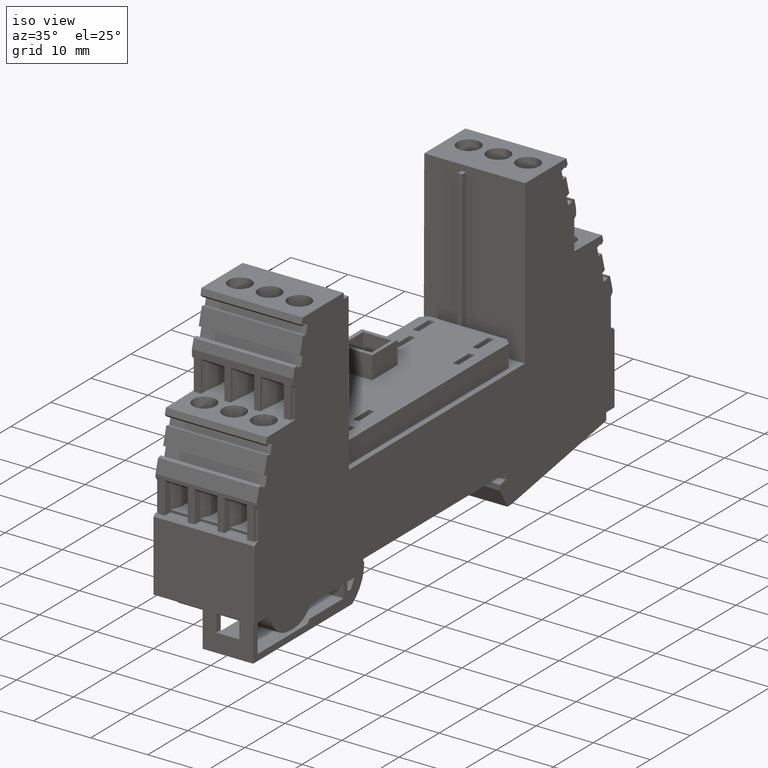
[diagram: clean part render]
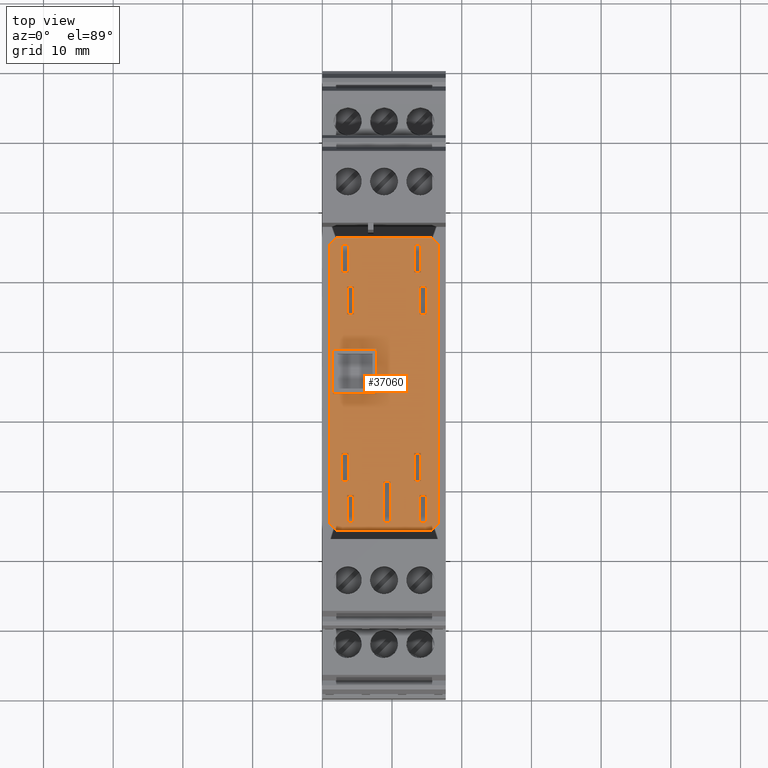
[diagram: tour spotlight — one face highlighted and labeled with its STEP entity id]
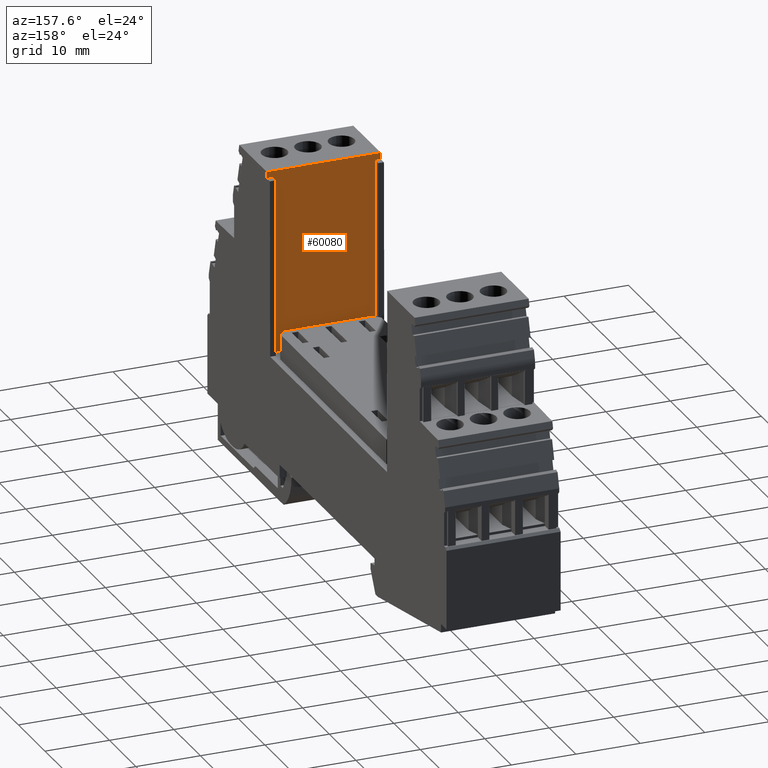
[diagram: tour spotlight — one face highlighted and labeled with its STEP entity id]
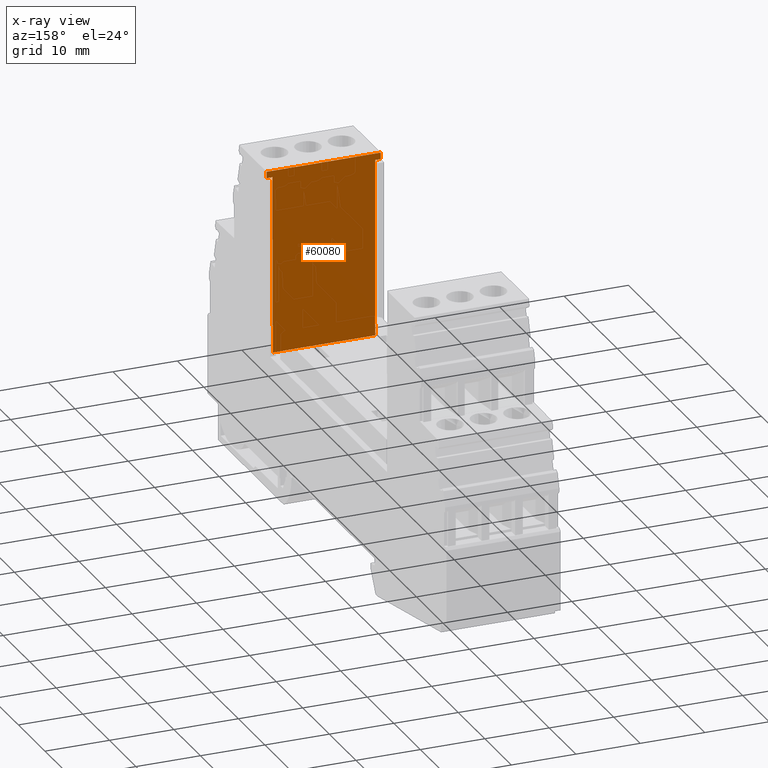
[diagram: x-ray of the same camera — body ghosted, this tour face saturated]
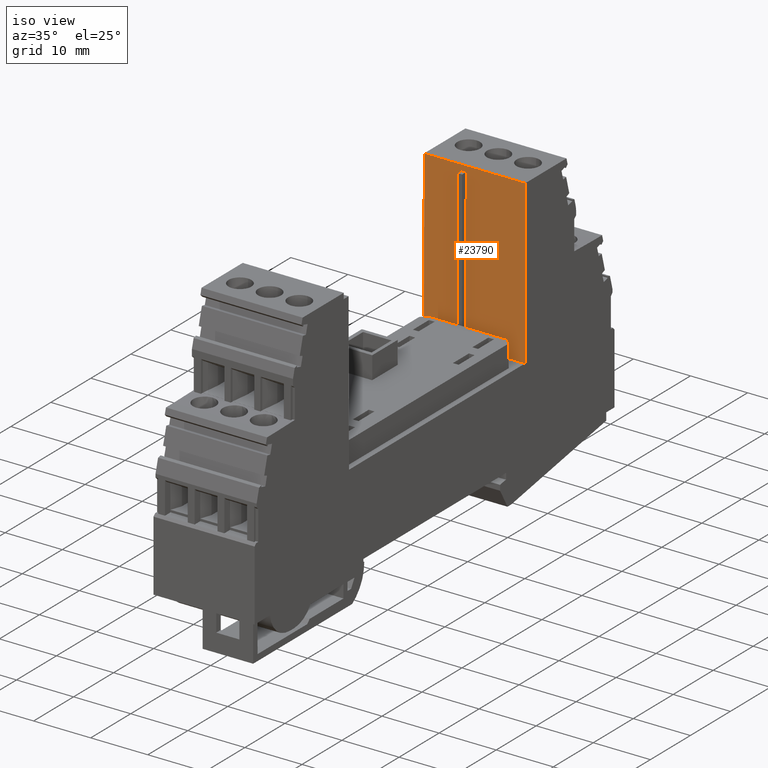
[diagram: tour spotlight — one face highlighted and labeled with its STEP entity id]
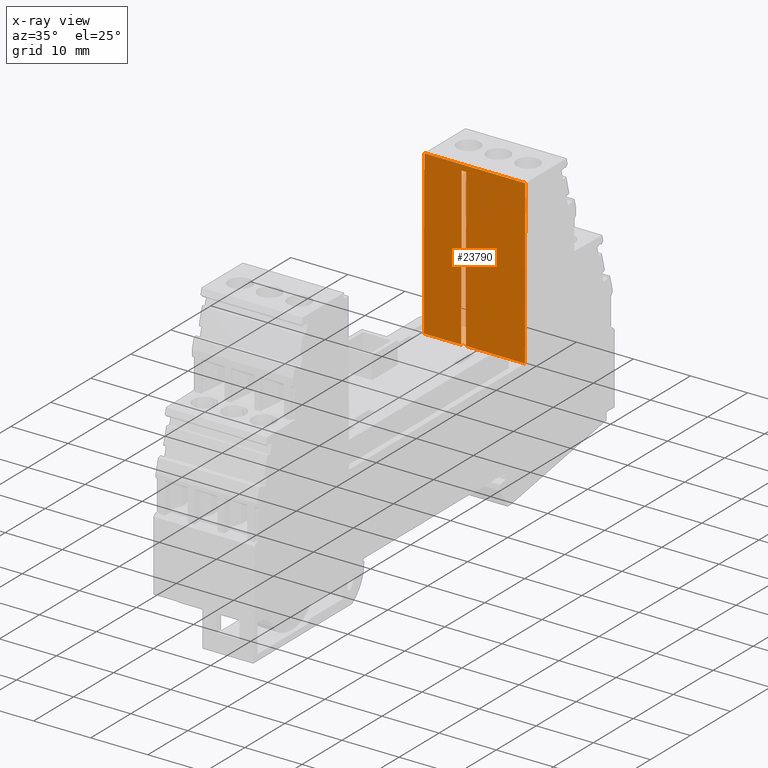
[diagram: x-ray of the same camera — body ghosted, this tour face saturated]
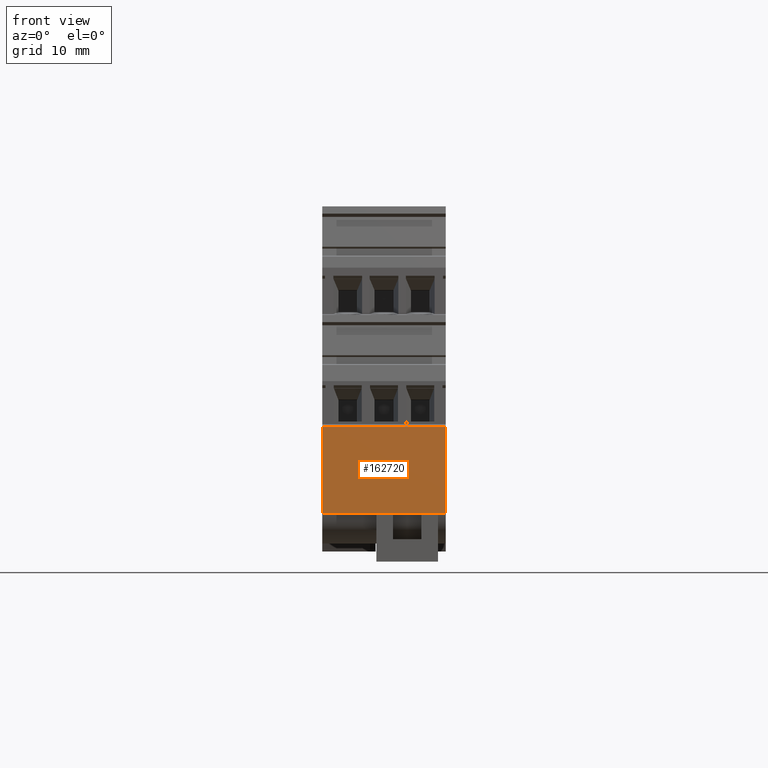
[diagram: tour spotlight — one face highlighted and labeled with its STEP entity id]
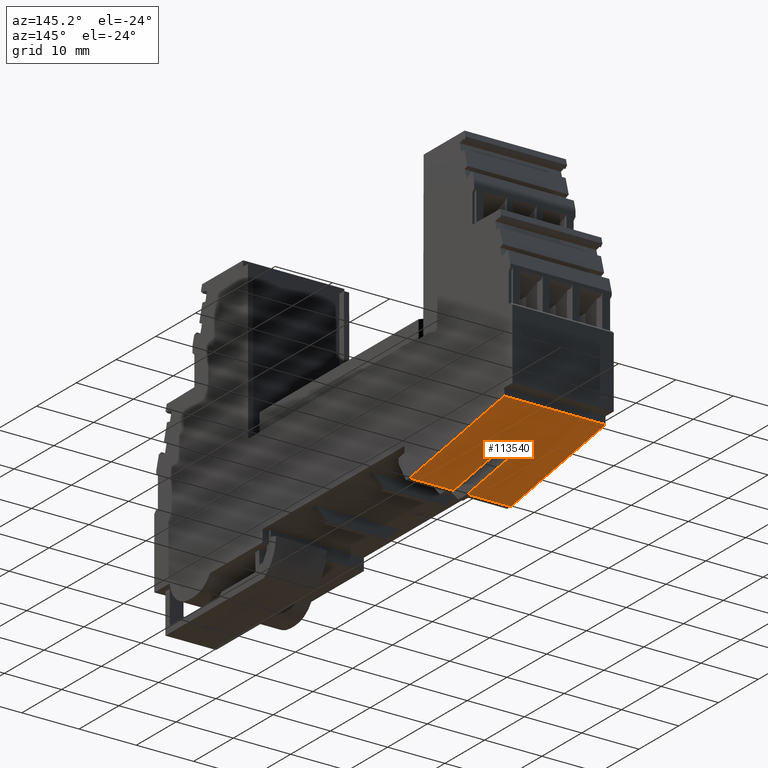
[diagram: tour spotlight — one face highlighted and labeled with its STEP entity id]
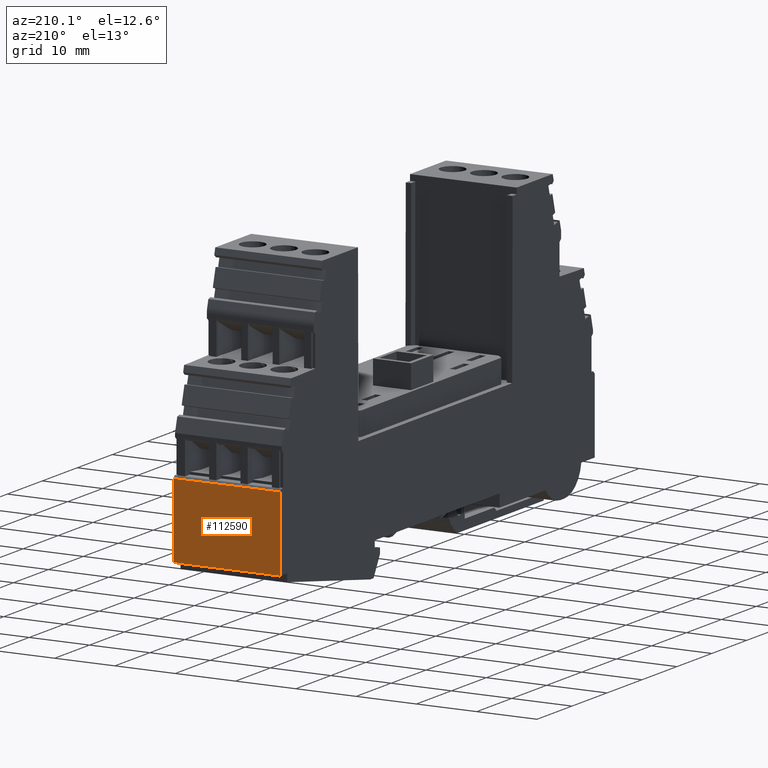
[diagram: tour spotlight — one face highlighted and labeled with its STEP entity id]
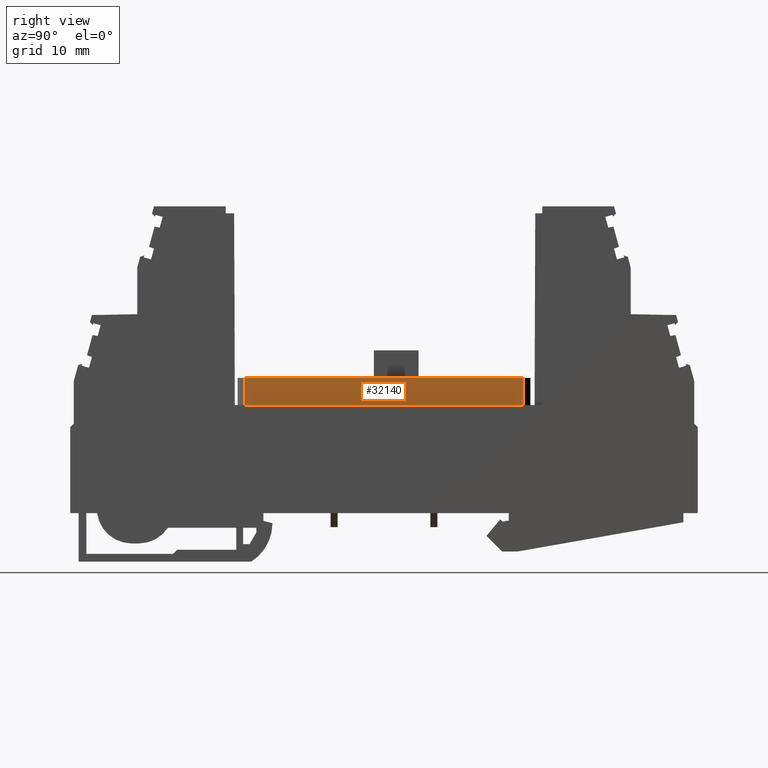
[diagram: tour spotlight — one face highlighted and labeled with its STEP entity id]
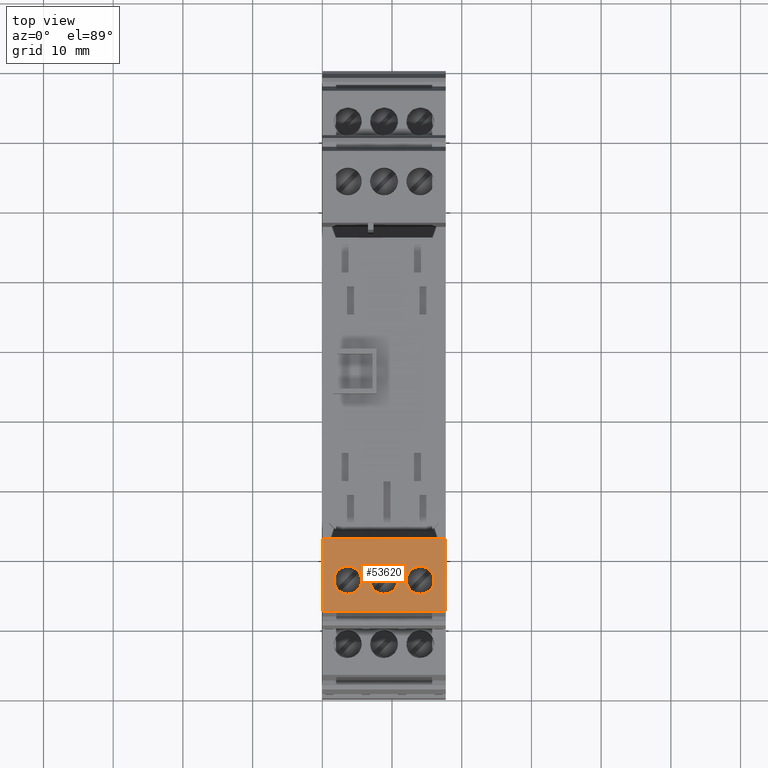
[diagram: tour spotlight — one face highlighted and labeled with its STEP entity id]
A machine part: a face-by-face anatomy tour. The part has 505 B-rep faces; the first image is the clean iso view, then the 8 largest visible faces are spotlighted one at a time (largest first), each with its STEP entity span.

Face 1 — top view, entity #37060. In plain terms, the highlighted planar face has unit normal (0, 0, 1).
Definition (entity closure, byte-faithful):
#31930=CARTESIAN_POINT('',(49.3413513671893,36.456274052444,-38.3));
#31940=VERTEX_POINT('',#31930);
#31970=CARTESIAN_POINT('',(8.90000005327397,36.456274052444,-38.3));
#31980=DIRECTION('',(-1.,0.,2.11259981369696E-23));
#31990=VECTOR('',#31980,1.);
#32000=LINE('',#31970,#31990);
#32010=CARTESIAN_POINT('',(89.3413513671894,36.456274052444,-38.3));
#32020=VERTEX_POINT('',#32010);
#32030=EDGE_CURVE('',#32020,#31940,#32000,.T.);
#32310=CARTESIAN_POINT('',(48.3413513671893,36.456274052444,-39.3));
#32320=VERTEX_POINT('',#32310);
#32350=CARTESIAN_POINT('',(83.8913513672815,36.456274052444,
-3.74999999990759));
#32360=DIRECTION('',(-0.707106781186545,0.,-0.70710678118655));
#32370=VECTOR('',#32360,1.);
#32380=LINE('',#32350,#32370);
#32390=EDGE_CURVE('',#31940,#32320,#32380,.T.);
#32620=CARTESIAN_POINT('',(49.3413513671894,36.456274052444,-54.));
#32630=VERTEX_POINT('',#32620);
#32660=CARTESIAN_POINT('',(-0.90864863290264,36.456274052444,
-3.74999999990759));
#32670=DIRECTION('',(0.707106781186545,0.,-0.70710678118655));
#32680=VECTOR('',#32670,1.);
#32690=LINE('',#32660,#32680);
#32700=CARTESIAN_POINT('',(48.3413513671893,36.456274052444,-53.));
#32710=VERTEX_POINT('',#32700);
#32720=EDGE_CURVE('',#32710,#32630,#32690,.T.);
#33000=CARTESIAN_POINT('',(90.3413513671893,36.456274052444,-53.));
#33010=VERTEX_POINT('',#33000);
#33040=CARTESIAN_POINT('',(139.591351367281,36.456274052444,
-3.74999999990759));
#33050=DIRECTION('',(0.707106781186545,0.,0.70710678118655));
#33060=VECTOR('',#33050,1.);
#33070=LINE('',#33040,#33060);
#33080=CARTESIAN_POINT('',(89.3413513671893,36.456274052444,-54.));
#33090=VERTEX_POINT('',#33080);
#33100=EDGE_CURVE('',#33090,#33010,#33070,.T.);
#33290=CARTESIAN_POINT('',(81.4789292064964,36.456274052444,
-46.1903015001682));
#33300=DIRECTION('',(0.,1.,-0.));
#33310=DIRECTION('',(-1.,0.,0.));
#33320=AXIS2_PLACEMENT_3D('',#33290,#33300,#33310);
#33330=PLANE('',#33320);
#33340=CARTESIAN_POINT('',(53.3913513671894,36.456274052444,
-3.74999999990759));
#33350=DIRECTION('',(1.22464679914735E-16,0.,1.));
#33360=VECTOR('',#33350,1.);
#33370=LINE('',#33340,#33360);
#33380=CARTESIAN_POINT('',(53.3913513671894,36.456274052444,-41.05));
#33390=VERTEX_POINT('',#33380);
#33400=CARTESIAN_POINT('',(53.3913513671894,36.456274052444,-40.05));
#33410=VERTEX_POINT('',#33400);
#33420=EDGE_CURVE('',#33390,#33410,#33370,.T.);
#33430=ORIENTED_EDGE('',*,*,#33420,.T.);
#33440=CARTESIAN_POINT('',(8.90000005327397,36.456274052444,-41.05));
#33450=DIRECTION('',(1.,0.,-1.22464679914735E-16));
#33460=VECTOR('',#33450,1.);
#33470=LINE('',#33440,#33460);
#33480=CARTESIAN_POINT('',(49.3913513671894,36.456274052444,-41.05));
#33490=VERTEX_POINT('',#33480);
#33500=EDGE_CURVE('',#33490,#33390,#33470,.T.);
#33510=ORIENTED_EDGE('',*,*,#33500,.T.);
#33520=CARTESIAN_POINT('',(49.3913513671894,36.456274052444,
-3.74999999990759));
#33530=DIRECTION('',(-1.22464679914735E-16,0.,-1.));
#33540=VECTOR('',#33530,1.);
#33550=LINE('',#33520,#33540);
#33560=CARTESIAN_POINT('',(49.3913513671894,36.456274052444,-40.05));
#33570=VERTEX_POINT('',#33560);
#33580=EDGE_CURVE('',#33570,#33490,#33550,.T.);
#33590=ORIENTED_EDGE('',*,*,#33580,.T.);
#33600=CARTESIAN_POINT('',(8.90000005327397,36.456274052444,-40.05));
#33610=DIRECTION('',(-1.,0.,1.22464679914735E-16));
#33620=VECTOR('',#33610,1.);
#33630=LINE('',#33600,#33620);
#33640=EDGE_CURVE('',#33410,#33570,#33630,.T.);
#33650=ORIENTED_EDGE('',*,*,#33640,.T.);
#33660=EDGE_LOOP('',(#33650,#33590,#33510,#33430));
#33670=FACE_BOUND('',#33660,.T.);
#33680=CARTESIAN_POINT('',(8.90000005327397,36.456274052444,-47.2));
#33690=DIRECTION('',(1.,0.,-1.22464679914735E-16));
#33700=VECTOR('',#33690,1.);
#33710=LINE('',#33680,#33700);
#33720=CARTESIAN_POINT('',(67.8913513671893,36.456274052444,-47.2));
#33730=VERTEX_POINT('',#33720);
#33740=CARTESIAN_POINT('',(74.2913513671893,36.456274052444,-47.2));
#33750=VERTEX_POINT('',#33740);
#33760=EDGE_CURVE('',#33730,#33750,#33710,.T.);
#33770=ORIENTED_EDGE('',*,*,#33760,.F.);
#33780=CARTESIAN_POINT('',(74.2913513671893,36.456274052444,
-3.74999999990759));
#33790=DIRECTION('',(-1.22464679914735E-16,0.,-1.));
#33800=VECTOR('',#33790,1.);
#33810=LINE('',#33780,#33800);
#33820=CARTESIAN_POINT('',(74.2913513671893,36.456274052444,-53.5));
#33830=VERTEX_POINT('',#33820);
#33840=EDGE_CURVE('',#33750,#33830,#33810,.T.);
#33850=ORIENTED_EDGE('',*,*,#33840,.F.);
#33860=CARTESIAN_POINT('',(8.90000005327397,36.456274052444,-53.5));
#33870=DIRECTION('',(-1.,0.,1.22464679914735E-16));
#33880=VECTOR('',#33870,1.);
#33890=LINE('',#33860,#33880);
#33900=CARTESIAN_POINT('',(67.8913513671893,36.456274052444,-53.5));
#33910=VERTEX_POINT('',#33900);
#33920=EDGE_CURVE('',#33830,#33910,#33890,.T.);
#33930=ORIENTED_EDGE('',*,*,#33920,.F.);
#33940=CARTESIAN_POINT('',(67.8913513671893,36.456274052444,
-3.7499999999076));
#33950=DIRECTION('',(1.22464679914735E-16,0.,1.));
#33960=VECTOR('',#33950,1.);
#33970=LINE('',#33940,#33960);
#33980=EDGE_CURVE('',#33910,#33730,#33970,.T.);
#33990=ORIENTED_EDGE('',*,*,#33980,.F.);
#34000=EDGE_LOOP('',(#33990,#33930,#33850,#33770));
#34010=FACE_BOUND('',#34000,.T.);
#34020=CARTESIAN_POINT('',(8.90000005327397,36.456274052444,-41.85));
#34030=DIRECTION('',(1.,0.,-8.99708997865547E-21));
#34040=VECTOR('',#34030,1.);
#34050=LINE('',#34020,#34040);
#34060=CARTESIAN_POINT('',(85.2913513671893,36.456274052444,-41.85));
#34070=VERTEX_POINT('',#34060);
#34080=CARTESIAN_POINT('',(89.2913513671893,36.456274052444,-41.85));
#34090=VERTEX_POINT('',#34080);
#34100=EDGE_CURVE('',#34070,#34090,#34050,.T.);
#34110=ORIENTED_EDGE('',*,*,#34100,.T.);
#34120=CARTESIAN_POINT('',(85.2913513671893,36.456274052444,
-3.74999999990759));
#34130=DIRECTION('',(-8.99708997865547E-21,0.,-1.));
#34140=VECTOR('',#34130,1.);
#34150=LINE('',#34120,#34140);
#34160=CARTESIAN_POINT('',(85.2913513671893,36.456274052444,-40.85));
#34170=VERTEX_POINT('',#34160);
#34180=EDGE_CURVE('',#34170,#34070,#34150,.T.);
#34190=ORIENTED_EDGE('',*,*,#34180,.T.);
#34200=CARTESIAN_POINT('',(8.90000005327397,36.456274052444,-40.85));
#34210=DIRECTION('',(-1.,0.,8.99708997865547E-21));
#34220=VECTOR('',#34210,1.);
#34230=LINE('',#34200,#34220);
#34240=CARTESIAN_POINT('',(89.2913513671893,36.456274052444,-40.85));
#34250=VERTEX_POINT('',#34240);
#34260=EDGE_CURVE('',#34250,#34170,#34230,.T.);
#34270=ORIENTED_EDGE('',*,*,#34260,.T.);
#34280=CARTESIAN_POINT('',(89.2913513671893,36.456274052444,
-3.74999999990759));
#34290=DIRECTION('',(8.99708997865547E-21,0.,1.));
#34300=VECTOR('',#34290,1.);
#34310=LINE('',#34280,#34300);
#34320=EDGE_CURVE('',#34090,#34250,#34310,.T.);
#34330=ORIENTED_EDGE('',*,*,#34320,.T.);
#34340=EDGE_LOOP('',(#34330,#34270,#34190,#34110));
#34350=FACE_BOUND('',#34340,.T.);
#34360=CARTESIAN_POINT('',(8.90000005327397,36.456274052444,-41.85));
#34370=DIRECTION('',(1.,0.,-8.99708997865547E-21));
#34380=VECTOR('',#34370,1.);
#34390=LINE('',#34360,#34380);
#34400=CARTESIAN_POINT('',(55.3913513671894,36.456274052444,-41.85));
#34410=VERTEX_POINT('',#34400);
#34420=CARTESIAN_POINT('',(59.3913513671894,36.456274052444,-41.85));
#34430=VERTEX_POINT('',#34420);
#34440=EDGE_CURVE('',#34410,#34430,#34390,.T.);
#34450=ORIENTED_EDGE('',*,*,#34440,.T.);
#34460=CARTESIAN_POINT('',(55.3913513671894,36.456274052444,
-3.74999999990759));
#34470=DIRECTION('',(-8.99708997865547E-21,0.,-1.));
#34480=VECTOR('',#34470,1.);
#34490=LINE('',#34460,#34480);
#34500=CARTESIAN_POINT('',(55.3913513671894,36.456274052444,-40.85));
#34510=VERTEX_POINT('',#34500);
#34520=EDGE_CURVE('',#34510,#34410,#34490,.T.);
#34530=ORIENTED_EDGE('',*,*,#34520,.T.);
#34540=CARTESIAN_POINT('',(8.90000005327397,36.456274052444,-40.85));
#34550=DIRECTION('',(-1.,0.,8.99708997865547E-21));
#34560=VECTOR('',#34550,1.);
#34570=LINE('',#34540,#34560);
#34580=CARTESIAN_POINT('',(59.3913513671894,36.456274052444,-40.85));
#34590=VERTEX_POINT('',#34580);
#34600=EDGE_CURVE('',#34590,#34510,#34570,.T.);
#34610=ORIENTED_EDGE('',*,*,#34600,.T.);
#34620=CARTESIAN_POINT('',(59.3913513671894,36.456274052444,
-3.74999999990759));
#34630=DIRECTION('',(8.99708997865547E-21,0.,1.));
#34640=VECTOR('',#34630,1.);
#34650=LINE('',#34620,#34640);
#34660=EDGE_CURVE('',#34430,#34590,#34650,.T.);
#34670=ORIENTED_EDGE('',*,*,#34660,.T.);
#34680=EDGE_LOOP('',(#34670,#34610,#34530,#34450));
#34690=FACE_BOUND('',#34680,.T.);
#34700=CARTESIAN_POINT('',(8.90000005327397,36.456274052444,-52.25));
#34710=DIRECTION('',(1.,0.,-8.99708997865547E-21));
#34720=VECTOR('',#34710,1.);
#34730=LINE('',#34700,#34720);
#34740=CARTESIAN_POINT('',(55.3913513671893,36.456274052444,-52.25));
#34750=VERTEX_POINT('',#34740);
#34760=CARTESIAN_POINT('',(59.3913513671894,36.456274052444,-52.25));
#34770=VERTEX_POINT('',#34760);
#34780=EDGE_CURVE('',#34750,#34770,#34730,.T.);
#34790=ORIENTED_EDGE('',*,*,#34780,.T.);
#34800=CARTESIAN_POINT('',(55.3913513671893,36.456274052444,
-3.74999999990759));
#34810=DIRECTION('',(-8.99708997865547E-21,0.,-1.));
#34820=VECTOR('',#34810,1.);
#34830=LINE('',#34800,#34820);
#34840=CARTESIAN_POINT('',(55.3913513671893,36.456274052444,-51.25));
#34850=VERTEX_POINT('',#34840);
#34860=EDGE_CURVE('',#34850,#34750,#34830,.T.);
#34870=ORIENTED_EDGE('',*,*,#34860,.T.);
#34880=CARTESIAN_POINT('',(8.90000005327397,36.456274052444,-51.25));
#34890=DIRECTION('',(-1.,0.,8.99708997865547E-21));
#34900=VECTOR('',#34890,1.);
#34910=LINE('',#34880,#34900);
#34920=CARTESIAN_POINT('',(59.3913513671894,36.456274052444,-51.25));
#34930=VERTEX_POINT('',#34920);
#34940=EDGE_CURVE('',#34930,#34850,#34910,.T.);
#34950=ORIENTED_EDGE('',*,*,#34940,.T.);
#34960=CARTESIAN_POINT('',(59.3913513671894,36.456274052444,
-3.74999999990759));
#34970=DIRECTION('',(8.99708997865547E-21,0.,1.));
#34980=VECTOR('',#34970,1.);
#34990=LINE('',#34960,#34980);
#35000=EDGE_CURVE('',#34770,#34930,#34990,.T.);
#35010=ORIENTED_EDGE('',*,*,#35000,.T.);
#35020=EDGE_LOOP('',(#35010,#34950,#34870,#34790));
#35030=FACE_BOUND('',#35020,.T.);
#35040=CARTESIAN_POINT('',(85.2913513671893,36.456274052444,
-3.74999999990759));
#35050=DIRECTION('',(-8.99708997865547E-21,0.,-1.));
#35060=VECTOR('',#35050,1.);
#35070=LINE('',#35040,#35060);
#35080=CARTESIAN_POINT('',(85.2913513671893,36.456274052444,-51.25));
#35090=VERTEX_POINT('',#35080);
#35100=CARTESIAN_POINT('',(85.2913513671893,36.456274052444,-52.25));
#35110=VERTEX_POINT('',#35100);
#35120=EDGE_CURVE('',#35090,#35110,#35070,.T.);
#35130=ORIENTED_EDGE('',*,*,#35120,.T.);
#35140=CARTESIAN_POINT('',(8.90000005327397,36.456274052444,-51.25));
#35150=DIRECTION('',(-1.,0.,8.99708997865547E-21));
#35160=VECTOR('',#35150,1.);
#35170=LINE('',#35140,#35160);
#35180=CARTESIAN_POINT('',(89.2913513671893,36.456274052444,-51.25));
#35190=VERTEX_POINT('',#35180);
#35200=EDGE_CURVE('',#35190,#35090,#35170,.T.);
#35210=ORIENTED_EDGE('',*,*,#35200,.T.);
#35220=CARTESIAN_POINT('',(89.2913513671893,36.456274052444,
-3.74999999990759));
#35230=DIRECTION('',(8.99708997865547E-21,0.,1.));
#35240=VECTOR('',#35230,1.);
#35250=LINE('',#35220,#35240);
#35260=CARTESIAN_POINT('',(89.2913513671893,36.456274052444,-52.25));
#35270=VERTEX_POINT('',#35260);
#35280=EDGE_CURVE('',#35270,#35190,#35250,.T.);
#35290=ORIENTED_EDGE('',*,*,#35280,.T.);
#35300=CARTESIAN_POINT('',(8.90000005327397,36.456274052444,-52.25));
#35310=DIRECTION('',(1.,0.,-8.99708997865547E-21));
#35320=VECTOR('',#35310,1.);
#35330=LINE('',#35300,#35320);
#35340=EDGE_CURVE('',#35110,#35270,#35330,.T.);
#35350=ORIENTED_EDGE('',*,*,#35340,.T.);
#35360=EDGE_LOOP('',(#35350,#35290,#35210,#35130));
#35370=FACE_BOUND('',#35360,.T.);
#35380=CARTESIAN_POINT('',(8.90000005327397,36.456274052444,-46.25));
#35390=DIRECTION('',(1.,0.,0.));
#35400=VECTOR('',#35390,1.);
#35410=LINE('',#35380,#35400);
#35420=CARTESIAN_POINT('',(49.3913513671893,36.456274052444,-46.25));
#35430=VERTEX_POINT('',#35420);
#35440=CARTESIAN_POINT('',(55.2913513671894,36.456274052444,-46.25));
#35450=VERTEX_POINT('',#35440);
#35460=EDGE_CURVE('',#35430,#35450,#35410,.T.);
#35470=ORIENTED_EDGE('',*,*,#35460,.T.);
#35480=CARTESIAN_POINT('',(49.3913513671893,36.456274052444,
-3.74999999990759));
#35490=DIRECTION('',(-1.22464679914735E-16,0.,-1.));
#35500=VECTOR('',#35490,1.);
#35510=LINE('',#35480,#35500);
#35520=CARTESIAN_POINT('',(49.3913513671893,36.456274052444,-45.25));
#35530=VERTEX_POINT('',#35520);
#35540=EDGE_CURVE('',#35530,#35430,#35510,.T.);
#35550=ORIENTED_EDGE('',*,*,#35540,.T.);
#35560=CARTESIAN_POINT('',(8.90000005327397,36.456274052444,-45.25));
#35570=DIRECTION('',(-1.,0.,0.));
#35580=VECTOR('',#35570,1.);
#35590=LINE('',#35560,#35580);
#35600=CARTESIAN_POINT('',(55.2913513671894,36.456274052444,-45.25));
#35610=VERTEX_POINT('',#35600);
#35620=EDGE_CURVE('',#35610,#35530,#35590,.T.);
#35630=ORIENTED_EDGE('',*,*,#35620,.T.);
#35640=CARTESIAN_POINT('',(55.2913513671894,36.456274052444,
-3.74999999990759));
#35650=DIRECTION('',(1.22464679914735E-16,0.,1.));
#35660=VECTOR('',#35650,1.);
#35670=LINE('',#35640,#35660);
#35680=EDGE_CURVE('',#35450,#35610,#35670,.T.);
#35690=ORIENTED_EDGE('',*,*,#35680,.T.);
#35700=EDGE_LOOP('',(#35690,#35630,#35550,#35470));
#35710=FACE_BOUND('',#35700,.T.);
#35720=CARTESIAN_POINT('',(8.90000005327397,36.456274052444,-40.05));
#35730=DIRECTION('',(-1.,0.,0.));
#35740=VECTOR('',#35730,1.);
#35750=LINE('',#35720,#35740);
#35760=CARTESIAN_POINT('',(83.2913513671894,36.456274052444,-40.05));
#35770=VERTEX_POINT('',#35760);
#35780=CARTESIAN_POINT('',(79.2913513671893,36.456274052444,-40.05));
#35790=VERTEX_POINT('',#35780);
#35800=EDGE_CURVE('',#35770,#35790,#35750,.T.);
#35810=ORIENTED_EDGE('',*,*,#35800,.T.);
#35820=CARTESIAN_POINT('',(83.2913513671894,36.456274052444,
-3.74999999990759));
#35830=DIRECTION('',(0.,0.,1.));
#35840=VECTOR('',#35830,1.);
#35850=LINE('',#35820,#35840);
#35860=CARTESIAN_POINT('',(83.2913513671894,36.456274052444,-41.05));
#35870=VERTEX_POINT('',#35860);
#35880=EDGE_CURVE('',#35870,#35770,#35850,.T.);
#35890=ORIENTED_EDGE('',*,*,#35880,.T.);
#35900=CARTESIAN_POINT('',(8.90000005327397,36.456274052444,-41.05));
#35910=DIRECTION('',(1.,0.,0.));
#35920=VECTOR('',#35910,1.);
#35930=LINE('',#35900,#35920);
#35940=CARTESIAN_POINT('',(79.2913513671893,36.456274052444,-41.05));
#35950=VERTEX_POINT('',#35940);
#35960=EDGE_CURVE('',#35950,#35870,#35930,.T.);
#35970=ORIENTED_EDGE('',*,*,#35960,.T.);
#35980=CARTESIAN_POINT('',(79.2913513671893,36.456274052444,
-3.74999999990759));
#35990=DIRECTION('',(0.,0.,-1.));
#36000=VECTOR('',#35990,1.);
#36010=LINE('',#35980,#36000);
#36020=EDGE_CURVE('',#35790,#35950,#36010,.T.);
#36030=ORIENTED_EDGE('',*,*,#36020,.T.);
#36040=EDGE_LOOP('',(#36030,#35970,#35890,#35810));
#36050=FACE_BOUND('',#36040,.T.);
#36060=CARTESIAN_POINT('',(83.2913513671893,36.456274052444,
-3.74999999990759));
#36070=DIRECTION('',(0.,0.,1.));
#36080=VECTOR('',#36070,1.);
#36090=LINE('',#36060,#36080);
#36100=CARTESIAN_POINT('',(83.2913513671893,36.456274052444,-51.45));
#36110=VERTEX_POINT('',#36100);
#36120=CARTESIAN_POINT('',(83.2913513671893,36.456274052444,-50.45));
#36130=VERTEX_POINT('',#36120);
#36140=EDGE_CURVE('',#36110,#36130,#36090,.T.);
#36150=ORIENTED_EDGE('',*,*,#36140,.T.);
#36160=CARTESIAN_POINT('',(8.90000005327397,36.456274052444,-51.45));
#36170=DIRECTION('',(1.,0.,0.));
#36180=VECTOR('',#36170,1.);
#36190=LINE('',#36160,#36180);
#36200=CARTESIAN_POINT('',(79.2913513671893,36.456274052444,-51.45));
#36210=VERTEX_POINT('',#36200);
#36220=EDGE_CURVE('',#36210,#36110,#36190,.T.);
#36230=ORIENTED_EDGE('',*,*,#36220,.T.);
#36240=CARTESIAN_POINT('',(79.2913513671893,36.456274052444,
-3.74999999990759));
#36250=DIRECTION('',(0.,0.,-1.));
#36260=VECTOR('',#36250,1.);
#36270=LINE('',#36240,#36260);
#36280=CARTESIAN_POINT('',(79.2913513671893,36.456274052444,-50.45));
#36290=VERTEX_POINT('',#36280);
#36300=EDGE_CURVE('',#36290,#36210,#36270,.T.);
#36310=ORIENTED_EDGE('',*,*,#36300,.T.);
#36320=CARTESIAN_POINT('',(8.90000005327397,36.456274052444,-50.45));
#36330=DIRECTION('',(-1.,0.,0.));
#36340=VECTOR('',#36330,1.);
#36350=LINE('',#36320,#36340);
#36360=EDGE_CURVE('',#36130,#36290,#36350,.T.);
#36370=ORIENTED_EDGE('',*,*,#36360,.T.);
#36380=EDGE_LOOP('',(#36370,#36310,#36230,#36150));
#36390=FACE_BOUND('',#36380,.T.);
#36400=CARTESIAN_POINT('',(8.90000005327397,36.456274052444,-51.45));
#36410=DIRECTION('',(1.,0.,-1.22464679914735E-16));
#36420=VECTOR('',#36410,1.);
#36430=LINE('',#36400,#36420);
#36440=CARTESIAN_POINT('',(49.3913513671894,36.456274052444,-51.45));
#36450=VERTEX_POINT('',#36440);
#36460=CARTESIAN_POINT('',(53.3913513671894,36.456274052444,-51.45));
#36470=VERTEX_POINT('',#36460);
#36480=EDGE_CURVE('',#36450,#36470,#36430,.T.);
#36490=ORIENTED_EDGE('',*,*,#36480,.T.);
#36500=CARTESIAN_POINT('',(49.3913513671894,36.456274052444,
-3.74999999990759));
#36510=DIRECTION('',(-1.22464679914735E-16,0.,-1.));
#36520=VECTOR('',#36510,1.);
#36530=LINE('',#36500,#36520);
#36540=CARTESIAN_POINT('',(49.3913513671894,36.456274052444,-50.45));
#36550=VERTEX_POINT('',#36540);
#36560=EDGE_CURVE('',#36550,#36450,#36530,.T.);
#36570=ORIENTED_EDGE('',*,*,#36560,.T.);
#36580=CARTESIAN_POINT('',(8.90000005327397,36.456274052444,-50.45));
#36590=DIRECTION('',(-1.,0.,1.22464679914735E-16));
#36600=VECTOR('',#36590,1.);
#36610=LINE('',#36580,#36600);
#36620=CARTESIAN_POINT('',(53.3913513671894,36.456274052444,-50.45));
#36630=VERTEX_POINT('',#36620);
#36640=EDGE_CURVE('',#36630,#36550,#36610,.T.);
#36650=ORIENTED_EDGE('',*,*,#36640,.T.);
#36660=CARTESIAN_POINT('',(53.3913513671894,36.456274052444,
-3.74999999990759));
#36670=DIRECTION('',(1.22464679914735E-16,0.,1.));
#36680=VECTOR('',#36670,1.);
#36690=LINE('',#36660,#36680);
#36700=EDGE_CURVE('',#36470,#36630,#36690,.T.);
#36710=ORIENTED_EDGE('',*,*,#36700,.T.);
#36720=EDGE_LOOP('',(#36710,#36650,#36570,#36490));
#36730=FACE_BOUND('',#36720,.T.);
#36740=ORIENTED_EDGE('',*,*,#32720,.F.);
#36750=CARTESIAN_POINT('',(8.90000005327397,36.456274052444,-54.));
#36760=DIRECTION('',(1.,0.,-1.22464679914735E-16));
#36770=VECTOR('',#36760,1.);
#36780=LINE('',#36750,#36770);
#36790=EDGE_CURVE('',#32630,#33090,#36780,.T.);
#36800=ORIENTED_EDGE('',*,*,#36790,.F.);
#36810=ORIENTED_EDGE('',*,*,#33100,.F.);
#36820=CARTESIAN_POINT('',(90.3413513671893,36.456274052444,
-3.74999999990759));
#36830=DIRECTION('',(0.,0.,1.));
#36840=VECTOR('',#36830,1.);
#36850=LINE('',#36820,#36840);
#36860=CARTESIAN_POINT('',(90.3413513671893,36.456274052444,-39.3));
#36870=VERTEX_POINT('',#36860);
#36880=EDGE_CURVE('',#33010,#36870,#36850,.T.);
#36890=ORIENTED_EDGE('',*,*,#36880,.F.);
#36900=CARTESIAN_POINT('',(54.7913513670972,36.456274052444,
-3.74999999990759));
#36910=DIRECTION('',(-0.707106781186545,0.,0.70710678118655));
#36920=VECTOR('',#36910,1.);
#36930=LINE('',#36900,#36920);
#36940=EDGE_CURVE('',#36870,#32020,#36930,.T.);
#36950=ORIENTED_EDGE('',*,*,#36940,.F.);
#36960=ORIENTED_EDGE('',*,*,#32030,.F.);
#36970=ORIENTED_EDGE('',*,*,#32390,.F.);
#36980=CARTESIAN_POINT('',(48.3413513671893,36.456274052444,
-3.74999999990759));
#36990=DIRECTION('',(-1.22464679914735E-16,0.,-1.));
#37000=VECTOR('',#36990,1.);
#37010=LINE('',#36980,#37000);
#37020=EDGE_CURVE('',#32320,#32710,#37010,.T.);
#37030=ORIENTED_EDGE('',*,*,#37020,.F.);
#37040=EDGE_LOOP('',(#37030,#36970,#36960,#36950,#36890,#36810,#36800,
#36740));
#37050=FACE_OUTER_BOUND('',#37040,.T.);
#37060=ADVANCED_FACE('',(#33670,#34010,#34350,#34690,#35030,#35370,
#35710,#36050,#36390,#36730,#37050),#33330,.T.);

Face 2 — auxiliary view, entity #60080. An x-ray twin of the same camera follows (body ghosted, this face saturated) — the face is partly hidden behind the body. In plain terms, the highlighted planar face has unit normal (-0, -1, -0.0035).
Definition (entity closure, byte-faithful):
#1560=CARTESIAN_POINT('',(46.6418672217727,61.056274052444,-37.3));
#1570=VERTEX_POINT('',#1560);
#1600=CARTESIAN_POINT('',(46.923760941475,-19.6999999999998,-37.3));
#1610=DIRECTION('',(-0.00349065141522361,0.99999390765779,0.));
#1620=VECTOR('',#1610,1.);
#1630=LINE('',#1600,#1620);
#1640=CARTESIAN_POINT('',(46.6453578944543,60.056274052444,-37.3));
#1650=VERTEX_POINT('',#1640);
#1660=EDGE_CURVE('',#1650,#1570,#1630,.T.);
#19320=CARTESIAN_POINT('',(46.6453578944543,60.056274052444,-55.));
#19330=VERTEX_POINT('',#19320);
#19360=CARTESIAN_POINT('',(46.7833690847091,20.5191410000002,-55.));
#19370=DIRECTION('',(-0.00349065141522361,0.99999390765779,
3.14057048929527E-23));
#19380=VECTOR('',#19370,1.);
#19390=LINE('',#19360,#19380);
#19400=CARTESIAN_POINT('',(46.6418672217727,61.056274052444,-55.));
#19410=VERTEX_POINT('',#19400);
#19420=EDGE_CURVE('',#19330,#19410,#19390,.T.);
#31360=CARTESIAN_POINT('',(46.7413513931982,32.556274052444,-38.2));
#31370=VERTEX_POINT('',#31360);
#31400=CARTESIAN_POINT('',(46.7413513931981,32.556274052444,
-3.74999999990759));
#31410=DIRECTION('',(1.22464679914735E-16,7.51478429024826E-19,1.));
#31420=VECTOR('',#31410,1.);
#31430=LINE('',#31400,#31420);
#31440=CARTESIAN_POINT('',(46.7413513931982,32.556274052444,
-54.1000000000001));
#31450=VERTEX_POINT('',#31440);
#31460=EDGE_CURVE('',#31450,#31370,#31430,.T.);
#52280=CARTESIAN_POINT('',(46.6453578944543,60.056274052444,
-54.1000000000001));
#52290=VERTEX_POINT('',#52280);
#52390=CARTESIAN_POINT('',(46.923760941475,-19.6999999999998,
-54.1000000000001));
#52400=DIRECTION('',(0.00349065141522361,-0.99999390765779,
-4.33680868994202E-19));
#52410=VECTOR('',#52400,1.);
#52420=LINE('',#52390,#52410);
#52430=EDGE_CURVE('',#52290,#31450,#52420,.T.);
#52600=CARTESIAN_POINT('',(46.6453578944543,60.056274052444,
-3.74999999990759));
#52610=DIRECTION('',(-1.22464679914735E-16,-7.51478429024826E-19,-1.));
#52620=VECTOR('',#52610,1.);
#52630=LINE('',#52600,#52620);
#52640=EDGE_CURVE('',#52290,#19330,#52630,.T.);
#53470=CARTESIAN_POINT('',(46.6418672217727,61.056274052444,
-3.74999999990759));
#53480=DIRECTION('',(-1.22464679914735E-16,-7.51478429024826E-19,-1.));
#53490=VECTOR('',#53480,1.);
#53500=LINE('',#53470,#53490);
#53510=EDGE_CURVE('',#1570,#19410,#53500,.T.);
#59850=CARTESIAN_POINT('',(46.6453578944543,60.056274052444,-55.));
#59860=DIRECTION('',(-0.99999390765779,-0.00349065141522361,
1.22466556967239E-16));
#59870=DIRECTION('',(0.00349065141522361,-0.99999390765779,
-3.14057048929527E-23));
#59880=AXIS2_PLACEMENT_3D('',#59850,#59860,#59870);
#59890=PLANE('',#59880);
#59900=ORIENTED_EDGE('',*,*,#19420,.T.);
#59910=ORIENTED_EDGE('',*,*,#52640,.T.);
#59920=ORIENTED_EDGE('',*,*,#52430,.F.);
#59930=ORIENTED_EDGE('',*,*,#31460,.F.);
#59940=CARTESIAN_POINT('',(46.923760941475,-19.6999999999998,-38.2));
#59950=DIRECTION('',(-0.00349065141522361,0.99999390765779,
4.33680868994202E-19));
#59960=VECTOR('',#59950,1.);
#59970=LINE('',#59940,#59960);
#59980=CARTESIAN_POINT('',(46.6453578944543,60.056274052444,-38.2));
#59990=VERTEX_POINT('',#59980);
#60000=EDGE_CURVE('',#31370,#59990,#59970,.T.);
#60010=ORIENTED_EDGE('',*,*,#60000,.F.);
#60020=EDGE_CURVE('',#1650,#59990,#52630,.T.);
#60030=ORIENTED_EDGE('',*,*,#60020,.T.);
#60040=ORIENTED_EDGE('',*,*,#1660,.F.);
#60050=ORIENTED_EDGE('',*,*,#53510,.F.);
#60060=EDGE_LOOP('',(#60050,#60040,#60030,#60010,#59930,#59920,#59910,
#59900));
#60070=FACE_OUTER_BOUND('',#60060,.T.);
#60080=ADVANCED_FACE('',(#60070),#59890,.F.);

Face 3 — iso view, entity #23790. An x-ray twin of the same camera follows (body ghosted, this face saturated) — the face is partly hidden behind the body. In plain terms, the highlighted planar face has unit normal (0, 1, -0.0035).
Definition (entity closure, byte-faithful):
#1880=CARTESIAN_POINT('',(91.9413513701809,32.556274052444,-37.3));
#1890=VERTEX_POINT('',#1880);
#1920=CARTESIAN_POINT('',(91.758941821904,-19.6999999999998,-37.3));
#1930=DIRECTION('',(-0.00349065141522385,-0.99999390765779,0.));
#1940=VECTOR('',#1930,1.);
#1950=LINE('',#1920,#1940);
#1960=CARTESIAN_POINT('',(92.0408355416064,61.056274052444,-37.3));
#1970=VERTEX_POINT('',#1960);
#1980=EDGE_CURVE('',#1970,#1890,#1950,.T.);
#19000=CARTESIAN_POINT('',(92.0408355416064,61.056274052444,-55.));
#19010=VERTEX_POINT('',#19000);
#19040=CARTESIAN_POINT('',(91.89933367867,20.5191410000002,-55.));
#19050=DIRECTION('',(-0.00349065141522385,-0.99999390765779,
3.140570484076E-23));
#19060=VECTOR('',#19050,1.);
#19070=LINE('',#19040,#19060);
#19080=CARTESIAN_POINT('',(91.9413513701809,32.556274052444,-55.));
#19090=VERTEX_POINT('',#19080);
#19100=EDGE_CURVE('',#19010,#19090,#19070,.T.);
#23300=CARTESIAN_POINT('',(92.0390962976263,60.5580193781516,-55.));
#23310=DIRECTION('',(0.99999390765779,-0.00349065141522385,
-1.22461310668755E-16));
#23320=DIRECTION('',(0.00349065141522385,0.99999390765779,
-3.140570484076E-23));
#23330=AXIS2_PLACEMENT_3D('',#23300,#23310,#23320);
#23340=PLANE('',#23330);
#23350=CARTESIAN_POINT('',(91.758941821904,-19.6999999999998,
-47.6500000000001));
#23360=DIRECTION('',(-0.00349065141522385,-0.99999390765779,
4.33680868994202E-19));
#23370=VECTOR('',#23360,1.);
#23380=LINE('',#23350,#23370);
#23390=CARTESIAN_POINT('',(92.0373448689248,60.056274052444,
-47.6500000000001));
#23400=VERTEX_POINT('',#23390);
#23410=CARTESIAN_POINT('',(91.9413513701808,32.556274052444,
-47.6500000000001));
#23420=VERTEX_POINT('',#23410);
#23430=EDGE_CURVE('',#23400,#23420,#23380,.T.);
#23440=ORIENTED_EDGE('',*,*,#23430,.T.);
#23450=CARTESIAN_POINT('',(92.0373448689248,60.056274052444,
-3.74999999990759));
#23460=DIRECTION('',(1.22460564592543E-16,-4.2746974739604E-19,1.));
#23470=VECTOR('',#23460,1.);
#23480=LINE('',#23450,#23470);
#23490=CARTESIAN_POINT('',(92.0373448689248,60.056274052444,
-48.4500000000001));
#23500=VERTEX_POINT('',#23490);
#23510=EDGE_CURVE('',#23500,#23400,#23480,.T.);
#23520=ORIENTED_EDGE('',*,*,#23510,.T.);
#23530=CARTESIAN_POINT('',(91.758941821904,-19.6999999999998,
-48.4500000000001));
#23540=DIRECTION('',(0.00349065141522385,0.99999390765779,
-4.33680868994202E-19));
#23550=VECTOR('',#23540,1.);
#23560=LINE('',#23530,#23550);
#23570=CARTESIAN_POINT('',(91.9413513701808,32.556274052444,
-48.4500000000001));
#23580=VERTEX_POINT('',#23570);
#23590=EDGE_CURVE('',#23580,#23500,#23560,.T.);
#23600=ORIENTED_EDGE('',*,*,#23590,.T.);
#23610=CARTESIAN_POINT('',(91.9413513701809,32.556274052444,
-3.74999999990759));
#23620=DIRECTION('',(1.22464679914735E-16,7.51478429024826E-19,1.));
#23630=VECTOR('',#23620,1.);
#23640=LINE('',#23610,#23630);
#23650=EDGE_CURVE('',#19090,#23580,#23640,.T.);
#23660=ORIENTED_EDGE('',*,*,#23650,.T.);
#23670=ORIENTED_EDGE('',*,*,#19100,.T.);
#23680=CARTESIAN_POINT('',(92.0408355416064,61.056274052444,
-3.74999999990759));
#23690=DIRECTION('',(-1.22464679914735E-16,-7.51478429024826E-19,-1.));
#23700=VECTOR('',#23690,1.);
#23710=LINE('',#23680,#23700);
#23720=EDGE_CURVE('',#1970,#19010,#23710,.T.);
#23730=ORIENTED_EDGE('',*,*,#23720,.T.);
#23740=ORIENTED_EDGE('',*,*,#1980,.F.);
#23750=EDGE_CURVE('',#23420,#1890,#23640,.T.);
#23760=ORIENTED_EDGE('',*,*,#23750,.T.);
#23770=EDGE_LOOP('',(#23760,#23740,#23730,#23670,#23660,#23600,#23520,
#23440));
#23780=FACE_OUTER_BOUND('',#23770,.T.);
#23790=ADVANCED_FACE('',(#23780),#23340,.F.);

Face 4 — front view, entity #162720. In plain terms, the highlighted planar face has unit normal (0, 1, -0).
Definition (entity closure, byte-faithful):
#6790=CARTESIAN_POINT('',(24.3413513885444,17.0562740524431,-37.3));
#6800=VERTEX_POINT('',#6790);
#6830=CARTESIAN_POINT('',(24.3413513885444,-19.6999999999998,-37.3));
#6840=DIRECTION('',(-1.20996962449382E-16,-1.,0.));
#6850=VECTOR('',#6840,1.);
#6860=LINE('',#6830,#6850);
#6870=CARTESIAN_POINT('',(24.3413513885444,29.4062740737999,-37.3));
#6880=VERTEX_POINT('',#6870);
#6890=EDGE_CURVE('',#6880,#6800,#6860,.T.);
#13400=CARTESIAN_POINT('',(24.3413513885444,17.0562740524431,-55.));
#13410=VERTEX_POINT('',#13400);
#13440=CARTESIAN_POINT('',(24.3413513885444,17.0562740524431,
-3.74999999990759));
#13450=DIRECTION('',(1.22464679914735E-16,7.51478429024816E-19,1.));
#13460=VECTOR('',#13450,1.);
#13470=LINE('',#13440,#13460);
#13480=EDGE_CURVE('',#13410,#6800,#13470,.T.);
#14420=CARTESIAN_POINT('',(24.3413513885444,29.4062740737999,-55.));
#14430=VERTEX_POINT('',#14420);
#14460=CARTESIAN_POINT('',(24.3413513885443,20.5191410000002,-55.));
#14470=DIRECTION('',(1.20996962449382E-16,1.,2.6096350746447E-32));
#14480=VECTOR('',#14470,1.);
#14490=LINE('',#14460,#14480);
#14500=EDGE_CURVE('',#13410,#14430,#14490,.T.);
#162450=CARTESIAN_POINT('',(24.3413513885444,29.4062740737999,
-3.74999999990759));
#162460=DIRECTION('',(1.22464679914735E-16,7.51478429024805E-19,1.));
#162470=VECTOR('',#162460,1.);
#162480=LINE('',#162450,#162470);
#162490=EDGE_CURVE('',#14430,#6880,#162480,.T.);
#162610=CARTESIAN_POINT('',(24.3413513885444,29.4062740737999,-55.));
#162620=DIRECTION('',(1.,-1.20996962449382E-16,-1.22464679914735E-16));
#162630=DIRECTION('',(-1.22464679914735E-16,4.09142050234659E-32,-1.));
#162640=AXIS2_PLACEMENT_3D('',#162610,#162620,#162630);
#162650=PLANE('',#162640);
#162660=ORIENTED_EDGE('',*,*,#14500,.F.);
#162670=ORIENTED_EDGE('',*,*,#162490,.F.);
#162680=ORIENTED_EDGE('',*,*,#6890,.F.);
#162690=ORIENTED_EDGE('',*,*,#13480,.T.);
#162700=EDGE_LOOP('',(#162690,#162680,#162670,#162660));
#162710=FACE_OUTER_BOUND('',#162700,.T.);
#162720=ADVANCED_FACE('',(#162710),#162650,.F.);

Face 5 — auxiliary view, entity #113540. In plain terms, the highlighted planar face has unit normal (-0, -0.1736, 0.9848).
Definition (entity closure, byte-faithful):
#5410=CARTESIAN_POINT('',(112.291351367189,15.7452605082471,-37.3));
#5420=VERTEX_POINT('',#5410);
#5450=CARTESIAN_POINT('',(8.90000005327397,-2.4854243003038,-37.3));
#5460=DIRECTION('',(-0.984807753012208,-0.17364817766693,0.));
#5470=VECTOR('',#5460,1.);
#5480=LINE('',#5450,#5470);
#5490=CARTESIAN_POINT('',(88.5344286377624,11.5562740524429,-37.3));
#5500=VERTEX_POINT('',#5490);
#5510=EDGE_CURVE('',#5420,#5500,#5480,.T.);
#15470=CARTESIAN_POINT('',(88.5344286377624,11.5562740524429,-55.));
#15480=VERTEX_POINT('',#15470);
#15510=CARTESIAN_POINT('',(8.90000005327397,-2.4854243003038,-55.));
#15520=DIRECTION('',(0.984807753012208,0.17364817766693,0.));
#15530=VECTOR('',#15520,1.);
#15540=LINE('',#15510,#15530);
#15550=CARTESIAN_POINT('',(112.291351367189,15.7452605082471,-55.));
#15560=VERTEX_POINT('',#15550);
#15570=EDGE_CURVE('',#15480,#15560,#15540,.T.);
#111570=CARTESIAN_POINT('',(8.90000005327397,-2.4854243003038,-44.95));
#111580=DIRECTION('',(-0.984807753012208,-0.17364817766693,0.));
#111590=VECTOR('',#111580,1.);
#111600=LINE('',#111570,#111590);
#111610=CARTESIAN_POINT('',(100.741351367189,13.7086838810643,-44.95));
#111620=VERTEX_POINT('',#111610);
#111630=CARTESIAN_POINT('',(88.5344286377624,11.5562740524429,-44.95));
#111640=VERTEX_POINT('',#111630);
#111650=EDGE_CURVE('',#111620,#111640,#111600,.T.);
#112960=CARTESIAN_POINT('',(112.291351367189,15.7452605082471,
-3.74999999990759));
#112970=DIRECTION('',(-1.22464679914735E-16,-7.5147842902485E-19,-1.));
#112980=VECTOR('',#112970,1.);
#112990=LINE('',#112960,#112980);
#113000=EDGE_CURVE('',#5420,#15560,#112990,.T.);
#113150=CARTESIAN_POINT('',(89.0605433707273,11.6490422748129,-55.));
#113160=DIRECTION('',(-0.17364817766693,0.984807753012208,
2.05257067126326E-17));
#113170=DIRECTION('',(-0.984807753012208,-0.17364817766693,
8.86040396552019E-21));
#113180=AXIS2_PLACEMENT_3D('',#113150,#113160,#113170);
#113190=PLANE('',#113180);
#113200=CARTESIAN_POINT('',(88.5344286377624,11.5562740524429,
-3.74999999990759));
#113210=DIRECTION('',(1.18202833962372E-16,-3.77093609555549E-32,1.));
#113220=VECTOR('',#113210,1.);
#113230=LINE('',#113200,#113220);
#113240=EDGE_CURVE('',#111640,#5500,#113230,.T.);
#113250=ORIENTED_EDGE('',*,*,#113240,.F.);
#113260=ORIENTED_EDGE('',*,*,#5510,.T.);
#113270=ORIENTED_EDGE('',*,*,#113000,.F.);
#113280=ORIENTED_EDGE('',*,*,#15570,.T.);
#113290=CARTESIAN_POINT('',(88.5344286377624,11.5562740524429,
-3.74999999990759));
#113300=DIRECTION('',(1.18202833962372E-16,-3.77093609555549E-32,1.));
#113310=VECTOR('',#113300,1.);
#113320=LINE('',#113290,#113310);
#113330=CARTESIAN_POINT('',(88.5344286377624,11.5562740524429,
-47.3500000000001));
#113340=VERTEX_POINT('',#113330);
#113350=EDGE_CURVE('',#15480,#113340,#113320,.T.);
#113360=ORIENTED_EDGE('',*,*,#113350,.F.);
#113370=CARTESIAN_POINT('',(8.90000005327397,-2.4854243003038,
-47.3500000000001));
#113380=DIRECTION('',(0.984807753012208,0.17364817766693,0.));
#113390=VECTOR('',#113380,1.);
#113400=LINE('',#113370,#113390);
#113410=CARTESIAN_POINT('',(100.741351367189,13.7086838810643,
-47.3500000000001));
#113420=VERTEX_POINT('',#113410);
#113430=EDGE_CURVE('',#113340,#113420,#113400,.T.);
#113440=ORIENTED_EDGE('',*,*,#113430,.F.);
#113450=CARTESIAN_POINT('',(100.741351367189,13.7086838810643,
-3.74999999990759));
#113460=DIRECTION('',(-8.99708997865547E-21,2.08407623940579E-17,-1.));
#113470=VECTOR('',#113460,1.);
#113480=LINE('',#113450,#113470);
#113490=EDGE_CURVE('',#111620,#113420,#113480,.T.);
#113500=ORIENTED_EDGE('',*,*,#113490,.T.);
#113510=ORIENTED_EDGE('',*,*,#111650,.F.);
#113520=EDGE_LOOP('',(#113510,#113500,#113440,#113360,#113280,#113270,
#113260,#113250));
#113530=FACE_OUTER_BOUND('',#113520,.T.);
#113540=ADVANCED_FACE('',(#113530),#113190,.F.);

Face 6 — auxiliary view, entity #112590. In plain terms, the highlighted planar face has unit normal (-0, -1, 0).
Definition (entity closure, byte-faithful):
#5170=CARTESIAN_POINT('',(114.341351313916,29.406274105718,-37.3));
#5180=VERTEX_POINT('',#5170);
#5210=CARTESIAN_POINT('',(114.341351313916,-19.6999999999998,-37.3));
#5220=DIRECTION('',(1.20996962449382E-16,1.,0.));
#5230=VECTOR('',#5220,1.);
#5240=LINE('',#5210,#5230);
#5250=CARTESIAN_POINT('',(114.341351313916,17.0562740524431,-37.3));
#5260=VERTEX_POINT('',#5250);
#5270=EDGE_CURVE('',#5260,#5180,#5240,.T.);
#15710=CARTESIAN_POINT('',(114.341351313916,17.0562740524431,-55.));
#15720=VERTEX_POINT('',#15710);
#15750=CARTESIAN_POINT('',(114.341351313916,20.5191410000002,-55.));
#15760=DIRECTION('',(-1.20996962449382E-16,-1.,-2.6096350746447E-32));
#15770=VECTOR('',#15760,1.);
#15780=LINE('',#15750,#15770);
#15790=CARTESIAN_POINT('',(114.341351313916,29.4062741057179,-55.));
#15800=VERTEX_POINT('',#15790);
#15810=EDGE_CURVE('',#15800,#15720,#15780,.T.);
#112380=CARTESIAN_POINT('',(114.341351313916,17.0562740524431,-55.));
#112390=DIRECTION('',(-1.,1.20996962449382E-16,1.22464679914735E-16));
#112400=DIRECTION('',(1.22464679914735E-16,-4.09142050234659E-32,1.));
#112410=AXIS2_PLACEMENT_3D('',#112380,#112390,#112400);
#112420=PLANE('',#112410);
#112430=ORIENTED_EDGE('',*,*,#15810,.F.);
#112440=CARTESIAN_POINT('',(114.341351313916,17.0562740524431,
-3.74999999990759));
#112450=DIRECTION('',(1.22464679914735E-16,7.51478429024816E-19,1.));
#112460=VECTOR('',#112450,1.);
#112470=LINE('',#112440,#112460);
#112480=EDGE_CURVE('',#15720,#5260,#112470,.T.);
#112490=ORIENTED_EDGE('',*,*,#112480,.F.);
#112500=ORIENTED_EDGE('',*,*,#5270,.F.);
#112510=CARTESIAN_POINT('',(114.341351313916,29.4062741057179,
-3.74999999990759));
#112520=DIRECTION('',(1.22464679914735E-16,7.51478429024831E-19,1.));
#112530=VECTOR('',#112520,1.);
#112540=LINE('',#112510,#112530);
#112550=EDGE_CURVE('',#15800,#5180,#112540,.T.);
#112560=ORIENTED_EDGE('',*,*,#112550,.T.);
#112570=EDGE_LOOP('',(#112560,#112500,#112490,#112430));
#112580=FACE_OUTER_BOUND('',#112570,.T.);
#112590=ADVANCED_FACE('',(#112580),#112420,.F.);

Face 7 — right view, entity #32140. In plain terms, the highlighted planar face has unit normal (1, -0, 0).
Definition (entity closure, byte-faithful):
#30640=CARTESIAN_POINT('',(8.90000005327397,32.556274052444,-38.3));
#30650=DIRECTION('',(-1.,0.,2.11259981369696E-23));
#30660=VECTOR('',#30650,1.);
#30670=LINE('',#30640,#30660);
#30680=CARTESIAN_POINT('',(89.3413513671894,32.556274052444,-38.3));
#30690=VERTEX_POINT('',#30680);
#30700=CARTESIAN_POINT('',(49.3413513671893,32.556274052444,-38.3));
#30710=VERTEX_POINT('',#30700);
#30720=EDGE_CURVE('',#30690,#30710,#30670,.T.);
#31840=CARTESIAN_POINT('',(89.1342445860028,32.556274052444,-38.3));
#31850=DIRECTION('',(2.11259981369696E-23,4.9604057039855E-75,1.));
#31860=DIRECTION('',(-1.,0.,2.11259981369696E-23));
#31870=AXIS2_PLACEMENT_3D('',#31840,#31850,#31860);
#31880=PLANE('',#31870);
#31890=CARTESIAN_POINT('',(49.3413513671893,-19.6999999999998,-38.3));
#31900=DIRECTION('',(2.34801010197241E-52,-1.,0.));
#31910=VECTOR('',#31900,1.);
#31920=LINE('',#31890,#31910);
#31930=CARTESIAN_POINT('',(49.3413513671893,36.456274052444,-38.3));
#31940=VERTEX_POINT('',#31930);
#31950=EDGE_CURVE('',#31940,#30710,#31920,.T.);
#31960=ORIENTED_EDGE('',*,*,#31950,.T.);
#31970=CARTESIAN_POINT('',(8.90000005327397,36.456274052444,-38.3));
#31980=DIRECTION('',(-1.,0.,2.11259981369696E-23));
#31990=VECTOR('',#31980,1.);
#32000=LINE('',#31970,#31990);
#32010=CARTESIAN_POINT('',(89.3413513671894,36.456274052444,-38.3));
#32020=VERTEX_POINT('',#32010);
#32030=EDGE_CURVE('',#32020,#31940,#32000,.T.);
#32040=ORIENTED_EDGE('',*,*,#32030,.T.);
#32050=CARTESIAN_POINT('',(89.3413513671894,-19.6999999999998,-38.3));
#32060=DIRECTION('',(2.34801010197241E-52,-1.,0.));
#32070=VECTOR('',#32060,1.);
#32080=LINE('',#32050,#32070);
#32090=EDGE_CURVE('',#32020,#30690,#32080,.T.);
#32100=ORIENTED_EDGE('',*,*,#32090,.F.);
#32110=ORIENTED_EDGE('',*,*,#30720,.F.);
#32120=EDGE_LOOP('',(#32110,#32100,#32040,#31960));
#32130=FACE_OUTER_BOUND('',#32120,.T.);
#32140=ADVANCED_FACE('',(#32130),#31880,.T.);

Face 8 — top view, entity #53620. In plain terms, the highlighted planar face has unit normal (0, -0, -1).
Definition (entity closure, byte-faithful):
#1480=CARTESIAN_POINT('',(36.3413513671893,61.056274052444,-37.3));
#1490=VERTEX_POINT('',#1480);
#1520=CARTESIAN_POINT('',(8.90000005327397,61.056274052444,-37.3));
#1530=DIRECTION('',(-1.,1.20996962449382E-16,0.));
#1540=VECTOR('',#1530,1.);
#1550=LINE('',#1520,#1540);
#1560=CARTESIAN_POINT('',(46.6418672217727,61.056274052444,-37.3));
#1570=VERTEX_POINT('',#1560);
#1580=EDGE_CURVE('',#1570,#1490,#1550,.T.);
#19400=CARTESIAN_POINT('',(46.6418672217727,61.056274052444,-55.));
#19410=VERTEX_POINT('',#19400);
#19440=CARTESIAN_POINT('',(37.119420053274,61.056274052444,-55.));
#19450=DIRECTION('',(1.,-1.20996962449382E-16,-8.99708997865547E-21));
#19460=VECTOR('',#19450,1.);
#19470=LINE('',#19440,#19460);
#19480=CARTESIAN_POINT('',(36.3413513671893,61.056274052444,-55.));
#19490=VERTEX_POINT('',#19480);
#19500=EDGE_CURVE('',#19490,#19410,#19470,.T.);
#52840=CARTESIAN_POINT('',(46.1436095119238,61.056274052444,-55.));
#52850=DIRECTION('',(-1.20996962449382E-16,-1.,7.51478429024852E-19));
#52860=DIRECTION('',(-8.99708997865547E-21,-7.51478429024852E-19,-1.));
#52870=AXIS2_PLACEMENT_3D('',#52840,#52850,#52860);
#52880=PLANE('',#52870);
#52890=CARTESIAN_POINT('',(40.7413513616226,61.056274052444,-46.15));
#52900=DIRECTION('',(1.20996962449382E-16,1.,-7.51478429024852E-19));
#52910=DIRECTION('',(1.,-1.20996962449382E-16,-1.22473677004714E-16));
#52920=AXIS2_PLACEMENT_3D('',#52890,#52900,#52910);
#52930=CIRCLE('',#52920,2.);
#52940=CARTESIAN_POINT('',(42.7009431558491,61.056274052444,
-45.7500000000001));
#52950=VERTEX_POINT('',#52940);
#52960=CARTESIAN_POINT('',(42.7413513616226,61.056274052444,-46.15));
#52970=VERTEX_POINT('',#52960);
#52980=EDGE_CURVE('',#52950,#52970,#52930,.T.);
#52990=ORIENTED_EDGE('',*,*,#52980,.F.);
#53000=CARTESIAN_POINT('',(38.7413513616226,61.056274052444,-46.15));
#53010=VERTEX_POINT('',#53000);
#53020=EDGE_CURVE('',#52970,#53010,#52930,.T.);
#53030=ORIENTED_EDGE('',*,*,#53020,.F.);
#53040=EDGE_CURVE('',#53010,#52950,#52930,.T.);
#53050=ORIENTED_EDGE('',*,*,#53040,.F.);
#53060=EDGE_LOOP('',(#53050,#53030,#52990));
#53070=FACE_BOUND('',#53060,.T.);
#53080=CARTESIAN_POINT('',(40.7413513616226,61.056274052444,-40.95));
#53090=DIRECTION('',(-1.20996962449382E-16,-1.,7.51478429024852E-19));
#53100=DIRECTION('',(1.,-1.20996962449382E-16,-1.22473677004714E-16));
#53110=AXIS2_PLACEMENT_3D('',#53080,#53090,#53100);
#53120=CIRCLE('',#53110,2.);
#53130=CARTESIAN_POINT('',(42.7413513616226,61.056274052444,-40.95));
#53140=VERTEX_POINT('',#53130);
#53150=CARTESIAN_POINT('',(38.7413513616226,61.056274052444,-40.95));
#53160=VERTEX_POINT('',#53150);
#53170=EDGE_CURVE('',#53140,#53160,#53120,.T.);
#53180=ORIENTED_EDGE('',*,*,#53170,.T.);
#53190=CARTESIAN_POINT('',(40.7413513616226,61.056274052444,-42.95));
#53200=VERTEX_POINT('',#53190);
#53210=EDGE_CURVE('',#53200,#53140,#53120,.T.);
#53220=ORIENTED_EDGE('',*,*,#53210,.T.);
#53230=EDGE_CURVE('',#53160,#53200,#53120,.T.);
#53240=ORIENTED_EDGE('',*,*,#53230,.T.);
#53250=EDGE_LOOP('',(#53240,#53220,#53180));
#53260=FACE_BOUND('',#53250,.T.);
#53270=CARTESIAN_POINT('',(40.7413513616226,61.056274052444,-51.35));
#53280=DIRECTION('',(1.20996962449382E-16,1.,-7.51478429024852E-19));
#53290=DIRECTION('',(1.,-1.20996962449382E-16,-1.22473677004714E-16));
#53300=AXIS2_PLACEMENT_3D('',#53270,#53280,#53290);
#53310=CIRCLE('',#53300,2.);
#53320=CARTESIAN_POINT('',(40.7413513616226,61.056274052444,-53.35));
#53330=VERTEX_POINT('',#53320);
#53340=CARTESIAN_POINT('',(38.7413513616226,61.056274052444,-51.35));
#53350=VERTEX_POINT('',#53340);
#53360=EDGE_CURVE('',#53330,#53350,#53310,.T.);
#53370=ORIENTED_EDGE('',*,*,#53360,.F.);
#53380=CARTESIAN_POINT('',(42.7413513616226,61.056274052444,-51.35));
#53390=VERTEX_POINT('',#53380);
#53400=EDGE_CURVE('',#53350,#53390,#53310,.T.);
#53410=ORIENTED_EDGE('',*,*,#53400,.F.);
#53420=EDGE_CURVE('',#53390,#53330,#53310,.T.);
#53430=ORIENTED_EDGE('',*,*,#53420,.F.);
#53440=EDGE_LOOP('',(#53430,#53410,#53370));
#53450=FACE_BOUND('',#53440,.T.);
#53460=ORIENTED_EDGE('',*,*,#19500,.F.);
#53470=CARTESIAN_POINT('',(46.6418672217727,61.056274052444,
-3.74999999990759));
#53480=DIRECTION('',(-1.22464679914735E-16,-7.51478429024826E-19,-1.));
#53490=VECTOR('',#53480,1.);
#53500=LINE('',#53470,#53490);
#53510=EDGE_CURVE('',#1570,#19410,#53500,.T.);
#53520=ORIENTED_EDGE('',*,*,#53510,.T.);
#53530=ORIENTED_EDGE('',*,*,#1580,.F.);
#53540=CARTESIAN_POINT('',(36.3413513671893,61.056274052444,
-3.74999999990759));
#53550=DIRECTION('',(-1.22464679914735E-16,-7.51478429024831E-19,-1.));
#53560=VECTOR('',#53550,1.);
#53570=LINE('',#53540,#53560);
#53580=EDGE_CURVE('',#1490,#19490,#53570,.T.);
#53590=ORIENTED_EDGE('',*,*,#53580,.F.);
#53600=EDGE_LOOP('',(#53590,#53530,#53520,#53460));
#53610=FACE_OUTER_BOUND('',#53600,.T.);
#53620=ADVANCED_FACE('',(#53070,#53260,#53450,#53610),#52880,.F.);